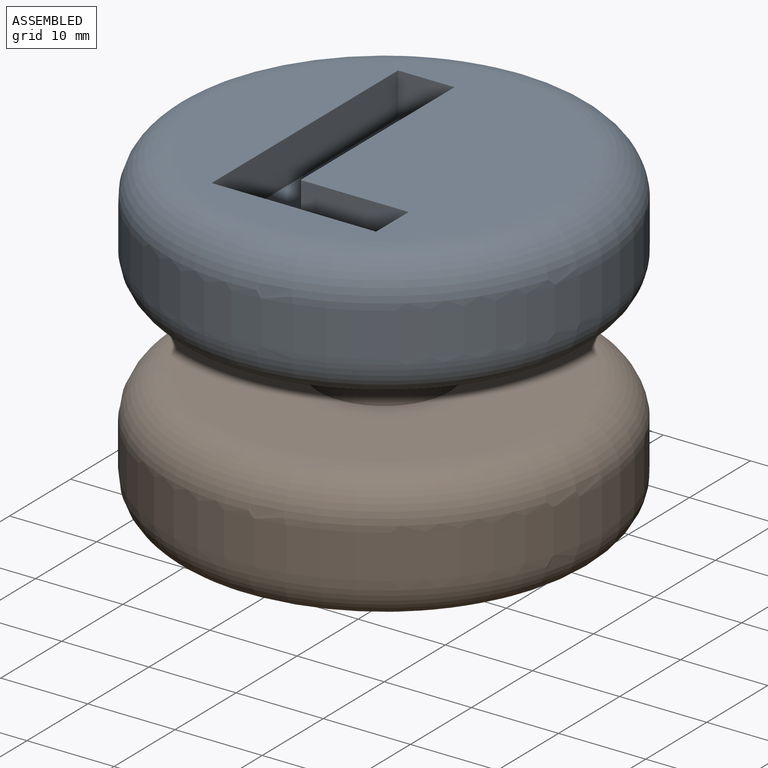
[diagram: assembled view]
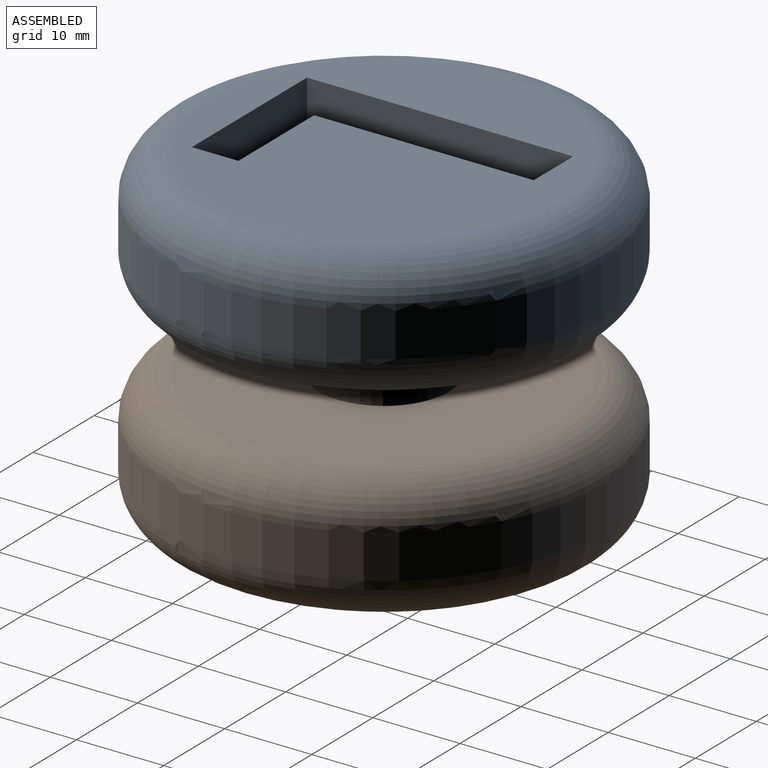
[diagram: assembled view, second angle]
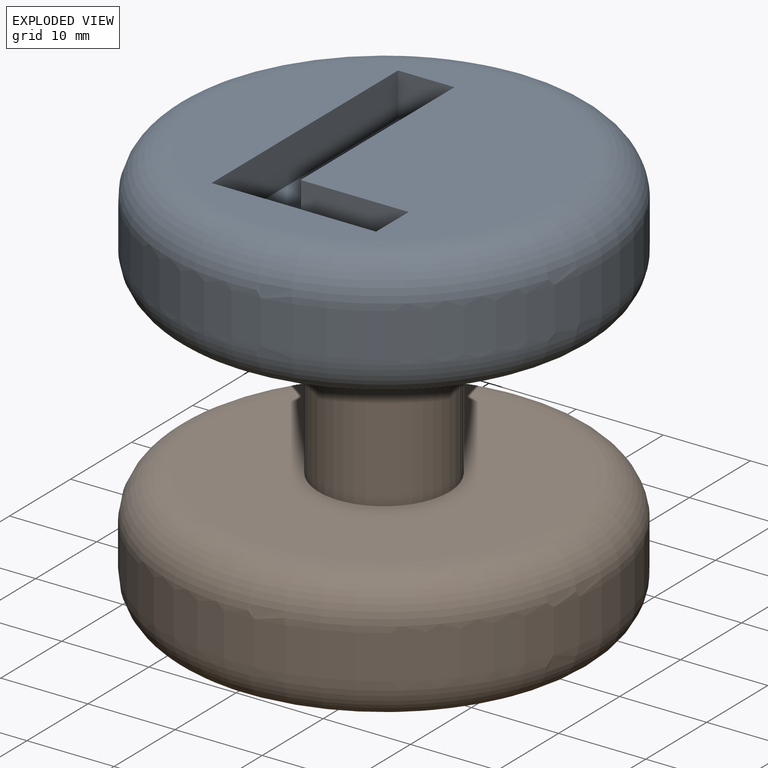
[diagram: exploded view]
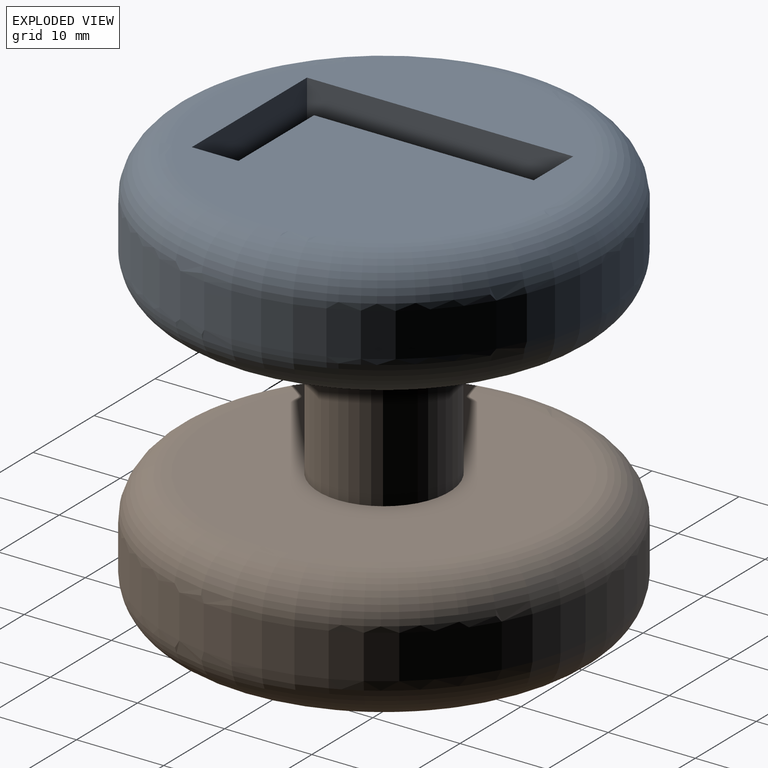
[diagram: exploded view, second angle]
ASSEMBLY  parts=2 mates=2
PART A: 14 faces, bbox 54.1x54.1x15 mm
  f0: plane 40x40mm, normal (0,0,1), area 992.3mm2, adj f4,f7,f8,f9,f10,f11,f12
  f1: cylinder r=25mm len=50mm, axis (0,0,-1), area 785.4mm2, adj f3,f4
  f2: plane 40x40mm, normal (0,0,-1), area 1079.9mm2, adj f3,f5
  f3: torus R=20mm, axis (0,0,1), area 1144mm2, adj f1,f2
  f4: torus R=20mm, axis (0,0,1), area 1144mm2, adj f0,f1
  f5: cylinder r=7.5mm len=15mm, axis (0,0,-1), area 329.9mm2, adj f2,f6
  f6: plane 15x15mm, normal (0,0,-1), area 176.7mm2, adj f5
  f7: plane 30.56x5mm, normal (1,0,0), area 152.8mm2, adj f0,f8,f12,f13
  f8: plane 18.87x5mm, normal (0,1,0), area 94.4mm2, adj f0,f7,f9,f13
  f9: plane 5.35x5mm, normal (-1,0,0), area 26.8mm2, adj f0,f8,f10,f13
  f10: plane 12.39x5mm, normal (0,-1,0), area 62mm2, adj f0,f9,f11,f13
  f11: plane 25.21x5mm, normal (-1,0,0), area 126mm2, adj f0,f10,f12,f13
  f12: plane 6.48x5mm, normal (0,-1,0), area 32.4mm2, adj f0,f7,f11,f13
  f13: plane 30.56x18.87mm, normal (0,0,1), area 264.3mm2, adj f7,f8,f9,f10,f11,f12
PART B: 14 faces, bbox 54.1x54.1x30 mm
  f0: plane 40x40mm, normal (0,0,-1), area 993.3mm2, adj f5,f7,f8,f9,f10,f11,f12
  f1: cylinder r=25mm len=50mm, axis (0,0,-1), area 785.4mm2, adj f5,f6
  f2: plane 40x40mm, normal (0,0,1), area 1079.9mm2, adj f3,f6
  f3: cylinder r=7.5mm len=15mm, axis (0,0,-1), area 706.9mm2, adj f2,f4
  f4: plane 15x15mm, normal (0,0,1), area 176.7mm2, adj f3
  f5: torus R=20mm, axis (0,0,1), area 1144mm2, adj f0,f1
  f6: torus R=20mm, axis (0,0,1), area 1144mm2, adj f1,f2
  f7: plane 30.5x5mm, normal (1,0,0), area 152.5mm2, adj f0,f8,f12,f13
  f8: plane 18.84x5mm, normal (0,-1,0), area 94.2mm2, adj f0,f7,f9,f13
  f9: plane 5.34x5mm, normal (-1,0,0), area 26.7mm2, adj f0,f8,f10,f13
  f10: plane 12.37x5mm, normal (0,1,0), area 61.8mm2, adj f0,f9,f11,f13
  f11: plane 25.16x5mm, normal (-1,0,0), area 125.8mm2, adj f0,f10,f12,f13
  f12: plane 6.47x5mm, normal (0,1,0), area 32.3mm2, adj f0,f7,f11,f13
  f13: plane 30.5x18.84mm, normal (0,0,-1), area 263.3mm2, adj f7,f8,f9,f10,f11,f12
PLACE A t=(-16.73,-0.43,-3.2)mm
PLACE B t=(-16.73,-0.43,-26.2)mm
MATE planar A.f5 <-> B.f3  axis (0,0,-1) through (-16.73,-0.43,3.8)mm
MATE slider B.f3 <-> A.f5  axis (0,0,1) through (-16.73,-0.43,-11.2)mm
